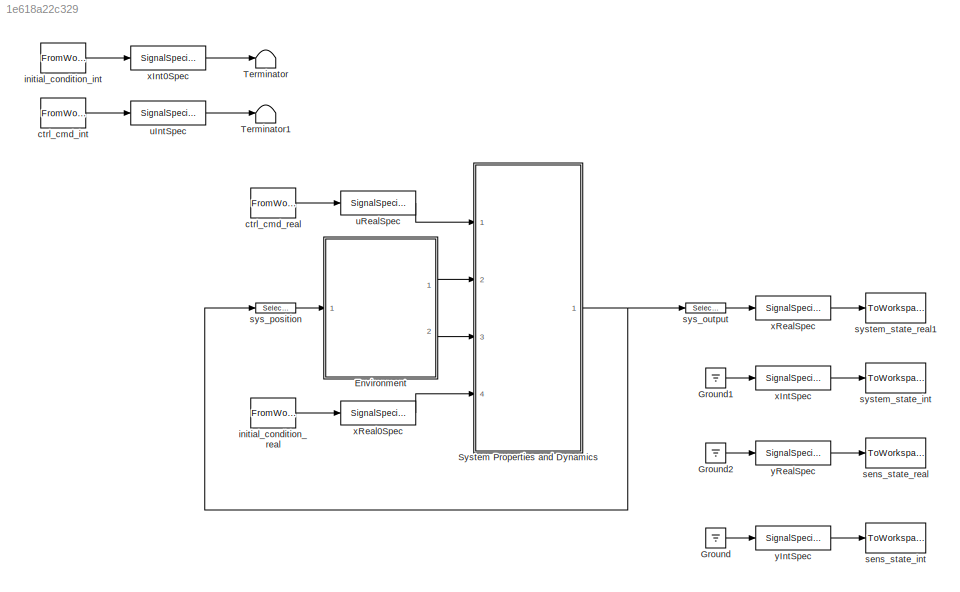
MODEL slx_1e618a22c329
KIND model
CONFIG AbsTol = auto
CONFIG FixedStep = UW.iSim.Ts
CONFIG MaxStep = auto
CONFIG MinStep = auto
CONFIG RelTol = 1e-3
CONFIG SampleTimeConstraint = Unconstrained
CONFIG Solver = ode4
CONFIG SolverMode = Auto
CONFIG SolverName = ode4
CONFIG StartTime = 0.0
CONFIG StopTime = 5*UW.iSim.T_stop
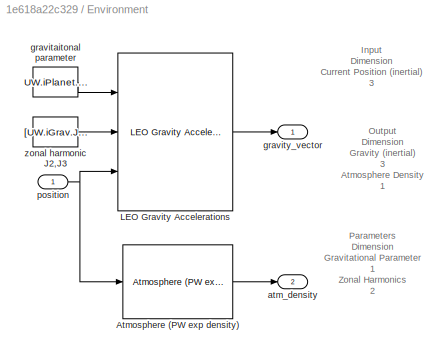
BLOCK [SubSystem] Environment
  Ports = [1, 2]
  RequestExecContextInheritance = off
  Variant = off
BLOCK [Reference] Environment/Atmosphere (PW exp density)  REF=GUARD_Toolbox/Physical Subsystems/Atmosphere (PW exp density)
  Ports = [1, 1]
  SourceBlock = GUARD_Toolbox/Physical Subsystems/Atmosphere (PW exp density)
  SourceType = Piecewise Atmospheric Model
BLOCK [Reference] Environment/LEO Gravity Accelerations  REF=GUARD_Toolbox/Physical Subsystems/LEO Gravity Accelerations
  Ports = [3, 1]
  SourceBlock = GUARD_Toolbox/Physical Subsystems/LEO Gravity Accelerations
  SourceType = LEO Gravity Model
BLOCK [Outport] Environment/atm_density
  IconDisplay = Port number
  Port = 2
BLOCK [Constant] Environment/gravitaitonal parameter
  Value = UW.iPlanet.mu
BLOCK [Outport] Environment/gravity_vector
  IconDisplay = Port number
BLOCK [Inport] Environment/position
  IconDisplay = Port number
BLOCK [Constant] Environment/zonal harmonic J2,J3
  Value = [UW.iGrav.J2_aux; UW.iGrav.J3_aux]
BLOCK [Ground] Ground
  Commented = on
BLOCK [Ground] Ground1
  Commented = on
BLOCK [Ground] Ground2
  Commented = on
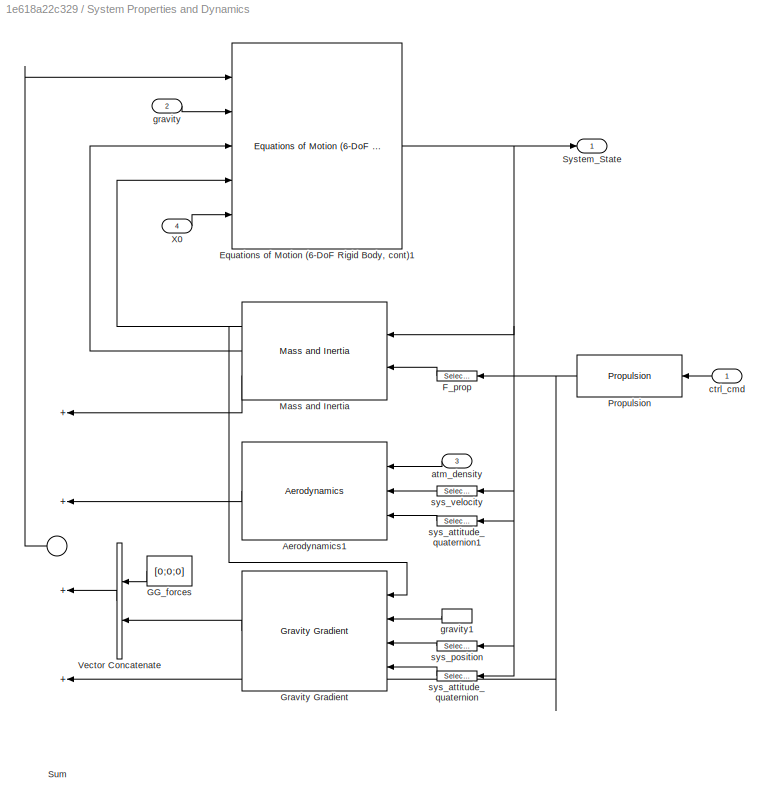
BLOCK [SubSystem] System Properties and Dynamics
  Ports = [4, 1]
  RequestExecContextInheritance = off
  Variant = off
BLOCK [Reference] System Properties and Dynamics/Aerodynamics1  REF=GUARD_Toolbox/Physical Subsystems/Aerodynamics
  Ports = [3, 1]
  SourceBlock = GUARD_Toolbox/Physical Subsystems/Aerodynamics
  SourceType = Aerodynamics Model
BLOCK [Reference] System Properties and Dynamics/Equations of Motion (6-DoF Rigid Body, cont)1  REF=GUARD_Toolbox/Physical Subsystems/Equations of Motion (6-DoF Rigid Body, cont)
  Ports = [5, 1]
  SourceBlock = GUARD_Toolbox/Physical Subsystems/Equations of Motion (6-DoF Rigid Body, cont)
  SourceType = Equatons of Motion
BLOCK [Selector] System Properties and Dynamics/F_prop
  IndexOptions = Index vector (dialog)
  Indices = [1 2 3]
  InputPortWidth = 6
  OutputSizes = 1
  Ports = [1, 1]
BLOCK [Constant] System Properties and Dynamics/GG_forces
  Value = [0;0;0]
BLOCK [Reference] System Properties and Dynamics/Gravity Gradient  REF=GUARD_Toolbox/Physical Subsystems/Gravity Gradient
  Ports = [4, 1]
  SourceBlock = GUARD_Toolbox/Physical Subsystems/Gravity Gradient
  SourceType = Gravity Gradient Torque
BLOCK [Reference] System Properties and Dynamics/Mass and Inertia  REF=GUARD_Toolbox/Physical Subsystems/Mass and Inertia
  Ports = [2, 3]
  SourceBlock = GUARD_Toolbox/Physical Subsystems/Mass and Inertia
  SourceType = Preset Mass and Inertia Subsystem
BLOCK [Reference] System Properties and Dynamics/Propulsion  REF=GUARD_Toolbox/Physical Subsystems/Propulsion
  Ports = [1, 1]
  SourceBlock = GUARD_Toolbox/Physical Subsystems/Propulsion
  SourceType = Propulson System
BLOCK [Sum] System Properties and Dynamics/Sum
  InputSameDT = off
  Inputs = ++++
  OutDataTypeStr = Inherit: Inherit via internal rule
  Ports = [4, 1]
  SaturateOnIntegerOverflow = off
BLOCK [Outport] System Properties and Dynamics/System_State
  IconDisplay = Port number
BLOCK [Concatenate] System Properties and Dynamics/Vector Concatenate
  Ports = [2, 1]
BLOCK [Inport] System Properties and Dynamics/X0
  IconDisplay = Port number
  Port = 4
BLOCK [Inport] System Properties and Dynamics/atm_density
  IconDisplay = Port number
  Port = 3
BLOCK [Inport] System Properties and Dynamics/ctrl_cmd
  IconDisplay = Port number
BLOCK [Inport] System Properties and Dynamics/gravity
  IconDisplay = Port number
  Port = 2
BLOCK [InportShadow] System Properties and Dynamics/gravity1
  IconDisplay = Port number
  Port = 2
BLOCK [Selector] System Properties and Dynamics/sys_attitude_quaternion
  IndexOptions = Index vector (dialog)
  Indices = [10 11 12 13]
  InputPortWidth = 19
  OutputSizes = 1
  Ports = [1, 1]
BLOCK [Selector] System Properties and Dynamics/sys_attitude_quaternion1
  IndexOptions = Index vector (dialog)
  Indices = [10 11 12 13]
  InputPortWidth = 19
  OutputSizes = 1
  Ports = [1, 1]
BLOCK [Selector] System Properties and Dynamics/sys_position
  IndexOptions = Index vector (dialog)
  Indices = [1 2 3]
  InputPortWidth = 19
  OutputSizes = 1
  Ports = [1, 1]
BLOCK [Selector] System Properties and Dynamics/sys_velocity
  IndexOptions = Index vector (dialog)
  Indices = [4 5 6]
  InputPortWidth = 19
  OutputSizes = 1
  Ports = [1, 1]
BLOCK [Terminator] Terminator
  Commented = on
BLOCK [Terminator] Terminator1
  Commented = on
BLOCK [FromWorkspace] ctrl_cmd_int
  Commented = on
  Interpolate = off
  OutDataTypeStr = uint8
  OutputAfterFinalValue = Holding final value
  SampleTime = UW.iSim.Ts
  VariableName = uInt
  ZeroCross = on
BLOCK [FromWorkspace] ctrl_cmd_real
  Interpolate = off
  OutDataTypeStr = double
  OutputAfterFinalValue = Holding final value
  SampleTime = UW.iSim.Ts
  VariableName = uReal
  ZeroCross = on
BLOCK [FromWorkspace] initial_condition_int
  Commented = on
  Interpolate = off
  OutDataTypeStr = uint8
  OutputAfterFinalValue = Holding final value
  SampleTime = UW.iSim.Ts
  VariableName = xInt0
  ZeroCross = on
BLOCK [FromWorkspace] initial_condition_real
  Interpolate = off
  OutDataTypeStr = double
  OutputAfterFinalValue = Holding final value
  SampleTime = UW.iSim.Ts
  VariableName = xReal0
  ZeroCross = on
BLOCK [ToWorkspace] sens_state_int
  Commented = on
  MaxDataPoints = 1
  Ports = [1]
  SampleTime = -1
  Save2DSignal = 3-D array (concatenate along third dimension)
  VariableName = yInt
BLOCK [ToWorkspace] sens_state_real
  Commented = on
  MaxDataPoints = 1
  Ports = [1]
  SampleTime = -1
  Save2DSignal = 3-D array (concatenate along third dimension)
  VariableName = yReal
BLOCK [Selector] sys_output
  IndexOptions = Index vector (dialog)
  Indices = [1 2 3 4 5 6 10 11 12 13 14 15 16]
  InputPortWidth = 19
  OutputSizes = 1
  Ports = [1, 1]
BLOCK [Selector] sys_position
  IndexOptions = Index vector (dialog)
  Indices = [1 2 3]
  InputPortWidth = 19
  OutputSizes = 1
  Ports = [1, 1]
BLOCK [ToWorkspace] system_state_int
  Commented = on
  MaxDataPoints = 1
  Ports = [1]
  SampleTime = -1
  Save2DSignal = 3-D array (concatenate along third dimension)
  VariableName = xInt
BLOCK [ToWorkspace] system_state_real1
  MaxDataPoints = 1
  Ports = [1]
  SampleTime = -1
  Save2DSignal = 3-D array (concatenate along third dimension)
  VariableName = xReal1
BLOCK [SignalSpecification] uIntSpec
  Commented = on
  Dimensions = 1
  OutDataTypeStr = uint8
BLOCK [SignalSpecification] uRealSpec
  Dimensions = 6
  OutDataTypeStr = double
BLOCK [SignalSpecification] xInt0Spec
  Commented = on
  Dimensions = 1
  OutDataTypeStr = uint8
BLOCK [SignalSpecification] xIntSpec
  Commented = on
  Dimensions = 1
  OutDataTypeStr = uint8
BLOCK [SignalSpecification] xReal0Spec
  Dimensions = 13
  OutDataTypeStr = double
BLOCK [SignalSpecification] xRealSpec
  Dimensions = 13
  OutDataTypeStr = double
BLOCK [SignalSpecification] yIntSpec
  Commented = on
  Dimensions = 1
  OutDataTypeStr = uint8
BLOCK [SignalSpecification] yRealSpec
  Commented = on
  Dimensions = 10
  OutDataTypeStr = double
ANNOTATION Environment: Output Dimension Gravity (inertial) 3 Atmosphere Density 1
ANNOTATION Environment: Input Dimension Current Position (inertial) 3
ANNOTATION Environment: Parameters Dimension Gravitational Parameter 1 Zonal Harmonics 2 Earth's Radius 1
LINE Environment/Atmosphere (PW exp density):1 -> Environment/atm_density:1
LINE Environment/LEO Gravity Accelerations:1 -> Environment/gravity_vector:1
LINE Environment/gravitaitonal parameter:1 -> Environment/LEO Gravity Accelerations:1
NET Environment/position:1 -> Environment/Atmosphere (PW exp density):1, Environment/LEO Gravity Accelerations:3
LINE Environment/zonal harmonic J2,J3:1 -> Environment/LEO Gravity Accelerations:2
LINE Environment:1 -> System Properties and Dynamics:2
LINE Environment:2 -> System Properties and Dynamics:3
LINE Ground1:1 -> xIntSpec:1
LINE Ground2:1 -> yRealSpec:1
LINE Ground:1 -> yIntSpec:1
LINE System Properties and Dynamics/Aerodynamics1:1 -> System Properties and Dynamics/Sum:2
NET System Properties and Dynamics/Equations of Motion (6-DoF Rigid Body, cont)1:1 -> System Properties and Dynamics/Mass and Inertia:1, System Properties and Dynamics/System_State:1, System Properties and Dynamics/sys_attitude_quaternion1:1, System Properties and Dynamics/sys_attitude_quaternion:1, System Properties and Dynamics/sys_position:1, System Properties and Dynamics/sys_velocity:1
LINE System Properties and Dynamics/F_prop:1 -> System Properties and Dynamics/Mass and Inertia:2
LINE System Properties and Dynamics/GG_forces:1 -> System Properties and Dynamics/Vector Concatenate:1
LINE System Properties and Dynamics/Gravity Gradient:1 -> System Properties and Dynamics/Vector Concatenate:2
NET System Properties and Dynamics/Mass and Inertia:1 -> System Properties and Dynamics/Equations of Motion (6-DoF Rigid Body, cont)1:4, System Properties and Dynamics/Gravity Gradient:1
LINE System Properties and Dynamics/Mass and Inertia:2 -> System Properties and Dynamics/Equations of Motion (6-DoF Rigid Body, cont)1:3
LINE System Properties and Dynamics/Mass and Inertia:3 -> System Properties and Dynamics/Sum:1
NET System Properties and Dynamics/Propulsion:1 -> System Properties and Dynamics/F_prop:1, System Properties and Dynamics/Sum:4
LINE System Properties and Dynamics/Sum:1 -> System Properties and Dynamics/Equations of Motion (6-DoF Rigid Body, cont)1:1
LINE System Properties and Dynamics/Vector Concatenate:1 -> System Properties and Dynamics/Sum:3
LINE System Properties and Dynamics/X0:1 -> System Properties and Dynamics/Equations of Motion (6-DoF Rigid Body, cont)1:5
LINE System Properties and Dynamics/atm_density:1 -> System Properties and Dynamics/Aerodynamics1:1
LINE System Properties and Dynamics/ctrl_cmd:1 -> System Properties and Dynamics/Propulsion:1
LINE System Properties and Dynamics/gravity1:1 -> System Properties and Dynamics/Gravity Gradient:2
LINE System Properties and Dynamics/gravity:1 -> System Properties and Dynamics/Equations of Motion (6-DoF Rigid Body, cont)1:2
LINE System Properties and Dynamics/sys_attitude_quaternion1:1 -> System Properties and Dynamics/Aerodynamics1:3
LINE System Properties and Dynamics/sys_attitude_quaternion:1 -> System Properties and Dynamics/Gravity Gradient:4
LINE System Properties and Dynamics/sys_position:1 -> System Properties and Dynamics/Gravity Gradient:3
LINE System Properties and Dynamics/sys_velocity:1 -> System Properties and Dynamics/Aerodynamics1:2
NET System Properties and Dynamics:1 -> sys_output:1, sys_position:1
LINE ctrl_cmd_int:1 -> uIntSpec:1
LINE ctrl_cmd_real:1 -> uRealSpec:1
LINE initial_condition_int:1 -> xInt0Spec:1
LINE initial_condition_real:1 -> xReal0Spec:1
LINE sys_output:1 -> xRealSpec:1
LINE sys_position:1 -> Environment:1
LINE uIntSpec:1 -> Terminator1:1
LINE uRealSpec:1 -> System Properties and Dynamics:1
LINE xInt0Spec:1 -> Terminator:1
LINE xIntSpec:1 -> system_state_int:1
LINE xReal0Spec:1 -> System Properties and Dynamics:4
LINE xRealSpec:1 -> system_state_real1:1
LINE yIntSpec:1 -> sens_state_int:1
LINE yRealSpec:1 -> sens_state_real:1
note: NET lines group one-source signal fan-out (src -> all destinations, sorted); 1:1 wires keep LINE
